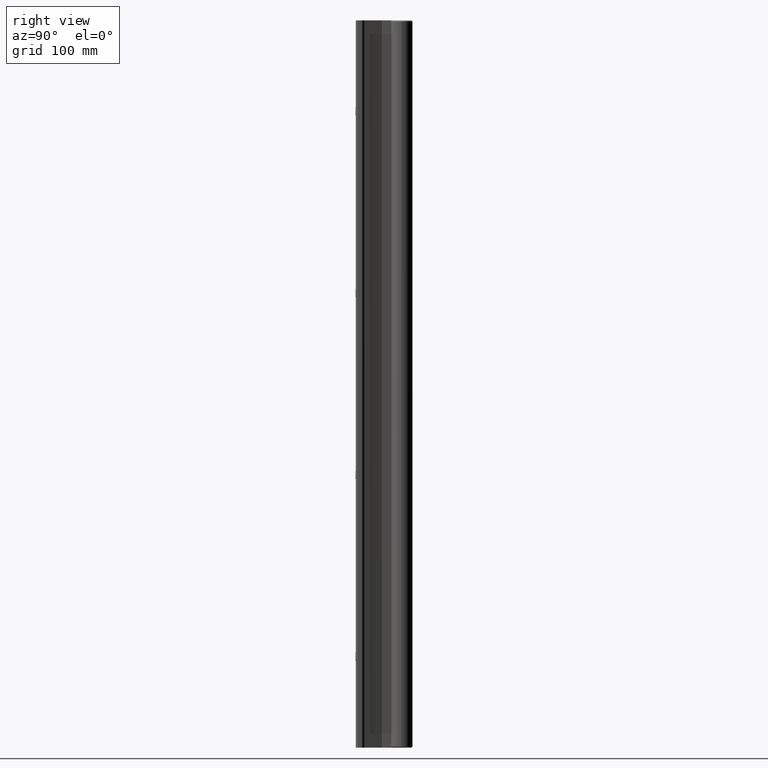
[diagram: clean part render]
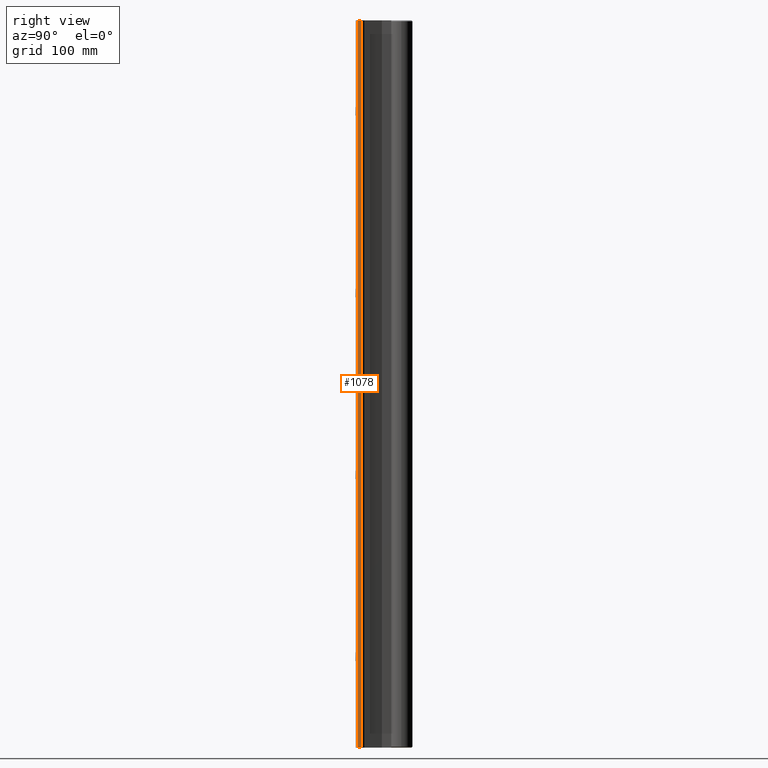
[diagram: same view with one face highlighted and labeled with its STEP entity id]
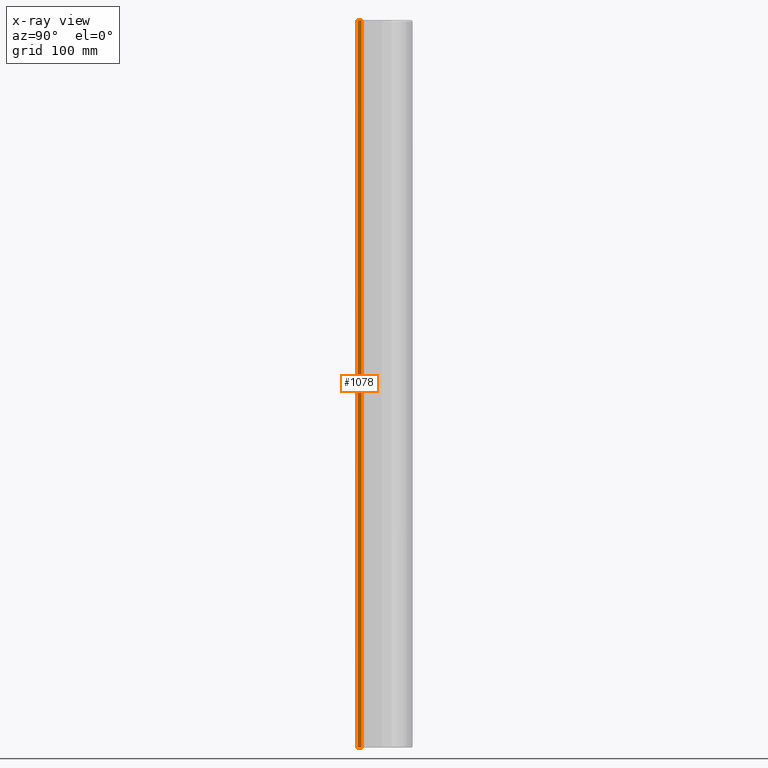
[diagram: x-ray of the same camera — body ghosted, the highlighted face saturated]
A machine part, right view. The second image highlights one B-rep face of the part: STEP entity #1078.
The next image is the same camera in x-ray: the body ghosted, the highlighted face saturated — about 0% of this face is hidden behind the body in this view.
In plain terms, the highlighted planar face has unit normal (1, -0, 0).
Its self-contained STEP definition (entity closure, byte-faithful):
#165 = CARTESIAN_POINT ( 'NONE',  ( 0.8749999999999992228, 0.06000000000000004635, 0.0000000000000000000 ) ) ;
#372 = DIRECTION ( 'NONE',  ( -4.202843067175790113E-15, -1.000000000000000000, 0.0000000000000000000 ) ) ;
#446 = EDGE_CURVE ( 'NONE', #4791, #4955, #2101, .T. ) ;
#497 = EDGE_CURVE ( 'NONE', #1332, #4955, #2926, .T. ) ;
#552 = DIRECTION ( 'NONE',  ( 1.000000000000000000, -4.202843067175790113E-15, 0.0000000000000000000 ) ) ;
#687 = LINE ( 'NONE', #5462, #2599 ) ;
#1010 = CARTESIAN_POINT ( 'NONE',  ( 0.8749999999999997780, 0.1900000000000000300, 0.0000000000000000000 ) ) ;
#1078 = ADVANCED_FACE ( 'NONE', ( #2700 ), #3933, .T. ) ;
#1332 = VERTEX_POINT ( 'NONE', #165 ) ;
#1592 = AXIS2_PLACEMENT_3D ( 'NONE', #6334, #552, #2444 ) ;
#2023 = ORIENTED_EDGE ( 'NONE', *, *, #497, .F. ) ;
#2101 = LINE ( 'NONE', #5733, #5704 ) ;
#2173 = CARTESIAN_POINT ( 'NONE',  ( 0.8749999999999992228, 0.06000000000000004635, -24.00000000000000355 ) ) ;
#2373 = DIRECTION ( 'NONE',  ( 4.202843067175790113E-15, 1.000000000000000000, 0.0000000000000000000 ) ) ;
#2444 = DIRECTION ( 'NONE',  ( 4.202843067175790113E-15, 1.000000000000000000, 0.0000000000000000000 ) ) ;
#2509 = CARTESIAN_POINT ( 'NONE',  ( 0.8749999999999992228, 0.06000000000000004635, -24.00000000000000355 ) ) ;
#2599 = VECTOR ( 'NONE', #3948, 39.37007874015748143 ) ;
#2700 = FACE_OUTER_BOUND ( 'NONE', #4573, .T. ) ;
#2863 = CARTESIAN_POINT ( 'NONE',  ( 0.8749999999999997780, 0.1900000000000000300, -24.00000000000000355 ) ) ;
#2926 = LINE ( 'NONE', #5749, #6167 ) ;
#3933 = PLANE ( 'NONE',  #1592 ) ;
#3948 = DIRECTION ( 'NONE',  ( 0.0000000000000000000, 0.0000000000000000000, 1.000000000000000000 ) ) ;
#4384 = EDGE_CURVE ( 'NONE', #4791, #5406, #5942, .T. ) ;
#4573 = EDGE_LOOP ( 'NONE', ( #5411, #5577, #2023, #4856 ) ) ;
#4632 = VECTOR ( 'NONE', #372, 39.37007874015748143 ) ;
#4791 = VERTEX_POINT ( 'NONE', #2863 ) ;
#4814 = DIRECTION ( 'NONE',  ( 0.0000000000000000000, 0.0000000000000000000, 1.000000000000000000 ) ) ;
#4856 = ORIENTED_EDGE ( 'NONE', *, *, #5785, .F. ) ;
#4955 = VERTEX_POINT ( 'NONE', #1010 ) ;
#5406 = VERTEX_POINT ( 'NONE', #2173 ) ;
#5411 = ORIENTED_EDGE ( 'NONE', *, *, #4384, .F. ) ;
#5462 = CARTESIAN_POINT ( 'NONE',  ( 0.8749999999999992228, 0.06000000000000004635, -26.10463218188032641 ) ) ;
#5577 = ORIENTED_EDGE ( 'NONE', *, *, #446, .T. ) ;
#5704 = VECTOR ( 'NONE', #4814, 39.37007874015748143 ) ;
#5733 = CARTESIAN_POINT ( 'NONE',  ( 0.8749999999999997780, 0.1900000000000000300, -26.10463218188032641 ) ) ;
#5749 = CARTESIAN_POINT ( 'NONE',  ( 0.8749999999999992228, 0.06000000000000004635, 0.0000000000000000000 ) ) ;
#5785 = EDGE_CURVE ( 'NONE', #5406, #1332, #687, .T. ) ;
#5942 = LINE ( 'NONE', #2509, #4632 ) ;
#6167 = VECTOR ( 'NONE', #2373, 39.37007874015748143 ) ;
#6334 = CARTESIAN_POINT ( 'NONE',  ( 0.8749999999999992228, 0.06000000000000004635, -26.10463218188032641 ) ) ;